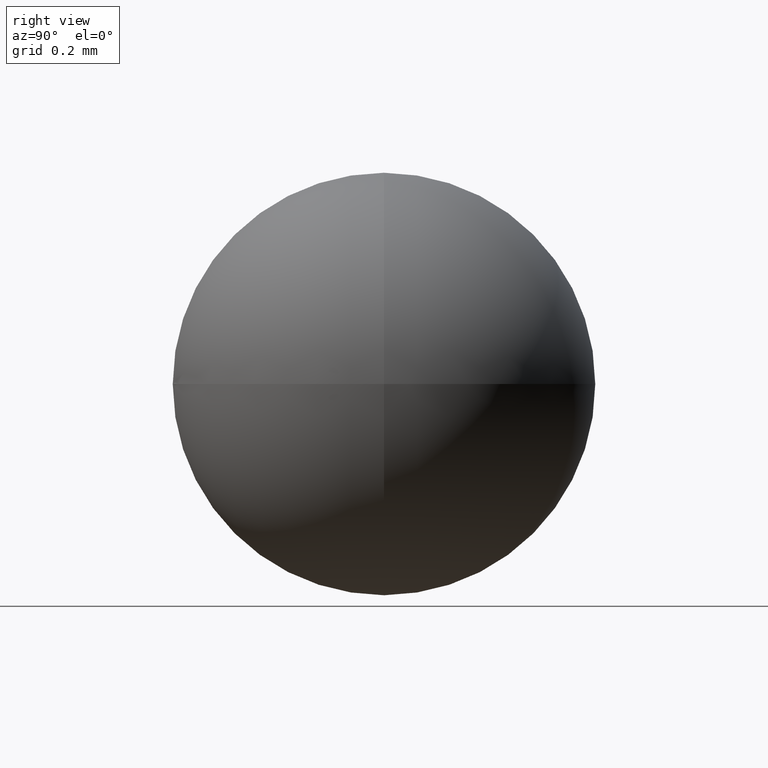
[diagram: clean part render]
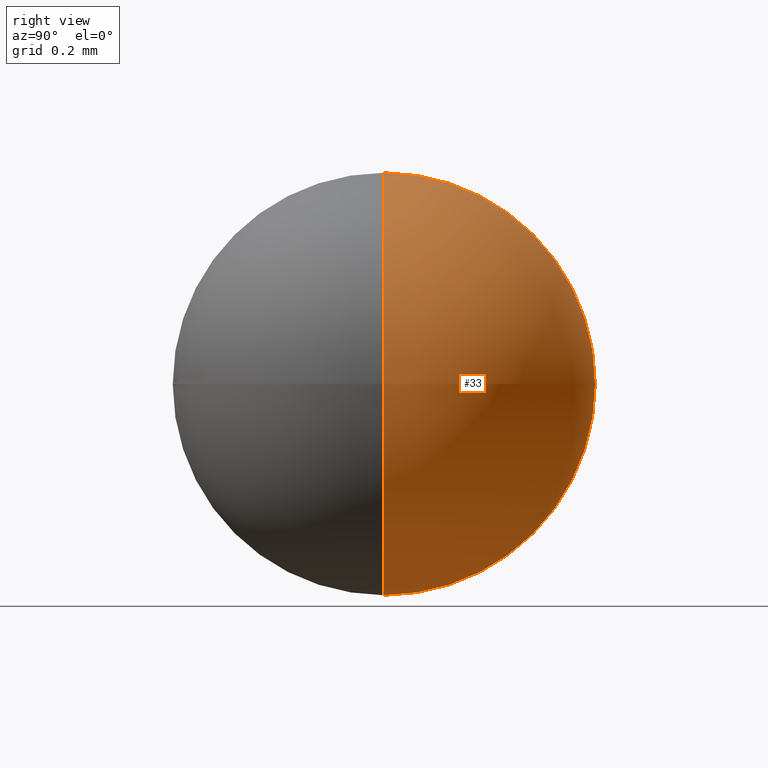
[diagram: same view with one face highlighted and labeled with its STEP entity id]
A machine part, right view. The second image highlights one B-rep face of the part: STEP entity #33.
In plain terms, the highlighted spherical surface has radius 0.5 mm.
Its self-contained STEP definition (entity closure, byte-faithful):
#9 = CARTESIAN_POINT ( 'NONE',  ( 3.061616997868383000E-017, 0.0000000000000000000, 0.5000000000000000000 ) ) ;
#19 = EDGE_CURVE ( 'NONE', #133, #95, #126, .T. ) ;
#23 = AXIS2_PLACEMENT_3D ( 'NONE', #128, #177, #99 ) ;
#27 = CARTESIAN_POINT ( 'NONE',  ( 0.0000000000000000000, 0.0000000000000000000, 0.0000000000000000000 ) ) ;
#28 = ORIENTED_EDGE ( 'NONE', *, *, #19, .F. ) ;
#33 = ADVANCED_FACE ( 'NONE', ( #157 ), #66, .T. ) ;
#42 = CIRCLE ( 'NONE', #79, 0.5000000000000000000 ) ;
#66 = SPHERICAL_SURFACE ( 'NONE', #23, 0.5000000000000000000 ) ;
#73 = DIRECTION ( 'NONE',  ( 0.0000000000000000000, 0.0000000000000000000, 1.000000000000000000 ) ) ;
#79 = AXIS2_PLACEMENT_3D ( 'NONE', #27, #199, #73 ) ;
#88 = CARTESIAN_POINT ( 'NONE',  ( 0.0000000000000000000, 0.0000000000000000000, 0.0000000000000000000 ) ) ;
#95 = VERTEX_POINT ( 'NONE', #196 ) ;
#99 = DIRECTION ( 'NONE',  ( 1.000000000000000000, 0.0000000000000000000, 0.0000000000000000000 ) ) ;
#100 = DIRECTION ( 'NONE',  ( 1.224646799147353200E-016, -1.000000000000000000, 0.0000000000000000000 ) ) ;
#106 = ORIENTED_EDGE ( 'NONE', *, *, #154, .T. ) ;
#113 = EDGE_LOOP ( 'NONE', ( #28, #106 ) ) ;
#126 = CIRCLE ( 'NONE', #164, 0.5000000000000000000 ) ;
#128 = CARTESIAN_POINT ( 'NONE',  ( 0.0000000000000000000, 0.0000000000000000000, 0.0000000000000000000 ) ) ;
#133 = VERTEX_POINT ( 'NONE', #9 ) ;
#154 = EDGE_CURVE ( 'NONE', #133, #95, #42, .T. ) ;
#157 = FACE_OUTER_BOUND ( 'NONE', #113, .T. ) ;
#164 = AXIS2_PLACEMENT_3D ( 'NONE', #88, #100, #175 ) ;
#175 = DIRECTION ( 'NONE',  ( 1.000000000000000000, 1.224646799147353200E-016, 0.0000000000000000000 ) ) ;
#177 = DIRECTION ( 'NONE',  ( 0.0000000000000000000, -1.000000000000000000, -0.0000000000000000000 ) ) ;
#196 = CARTESIAN_POINT ( 'NONE',  ( 3.061616997868383000E-017, 0.0000000000000000000, -0.5000000000000000000 ) ) ;
#199 = DIRECTION ( 'NONE',  ( 0.0000000000000000000, 1.000000000000000000, -0.0000000000000000000 ) ) ;